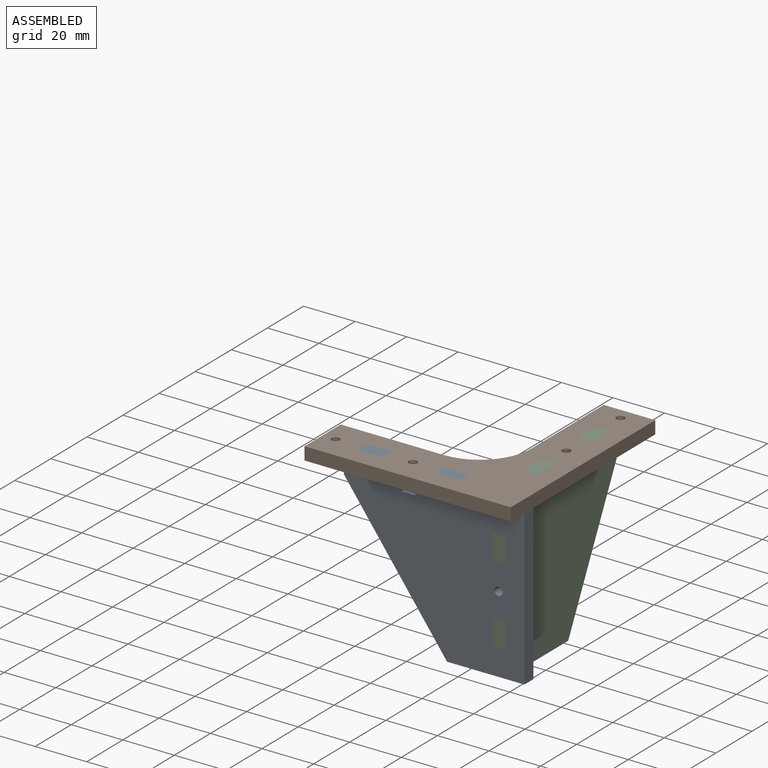
[diagram: assembled view]
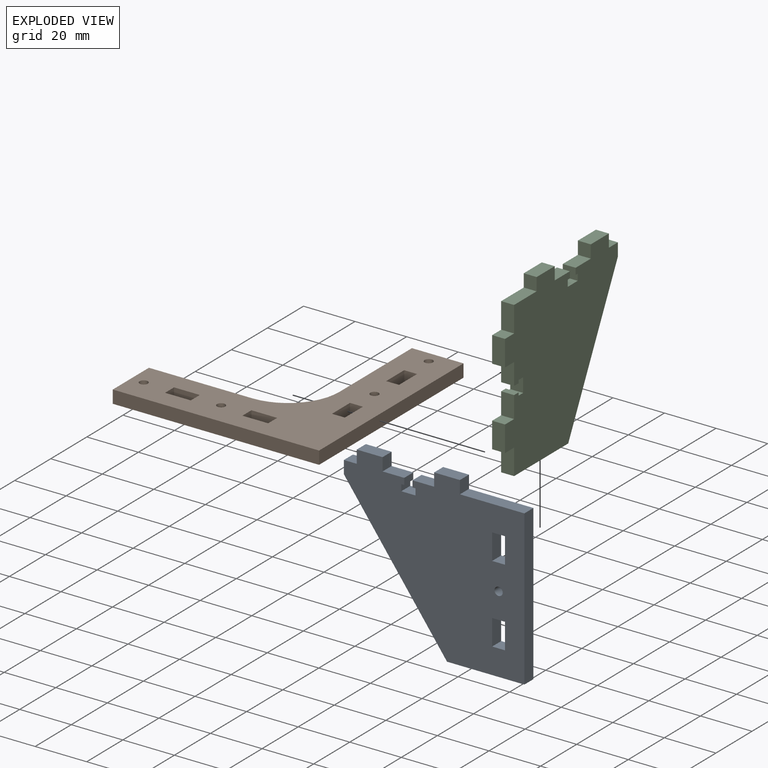
[diagram: exploded view]
GUIDED TOUR — MATED ASSEMBLY (Onshape document 587b4a1ab7e3a016f7670e06, AutoMate assembly 587b4a1ab7e3a016f7670e06_d3d78eabf9d92a54202f4ebb_569f92592c99146b34b32329_default)

This assembly has 3 components, labeled P0..P2 below (a component is one placed occurrence of a part; the same part can appear more than once), held together by 2 mates. A mate is a constraint between two components; its type names the relative motion it leaves free:
  FASTENED — locks the two components together rigidly (no relative motion).
Axis/direction vectors are unit vectors and 'through' points are millimeter coordinates, both in the assembly's world frame.

MATES
  1. FASTENED "Fastened 1": P2 <-> P0, direction (0.000, 0.000, 1.000) through (-46.94, -13.70, 50.59) mm
  2. FASTENED "Fastened 2": P0 <-> P1, direction (-1.000, 0.000, 0.000) through (-101.94, -13.70, 63.09) mm

ASSEMBLY ORDER
  1. P0 — the base component [order heuristic]
  2. P1 [order heuristic]
  3. P2 [order heuristic]
Order-tag legend:
  [order heuristic] — this assembly is geometrically interlocked (no collision-free removal order exists), so components are listed in mate-graph order; insertion feasibility is not verified.

Of the 3 components, 3 carry the full construction recipe — the FeatureScript program that regenerates the part's solid from scratch; the rest are supplied as boundary geometry only.
Each toured component is shown spotlighted twice — in the assembled view, then in the exploded view, where a leader line traces a displaced component back to its assembled socket (saturated green if recipe-attached, orange if geometry-only; every other component desaturated gray) — followed by its recipe or geometry summary and the mates that hold it.
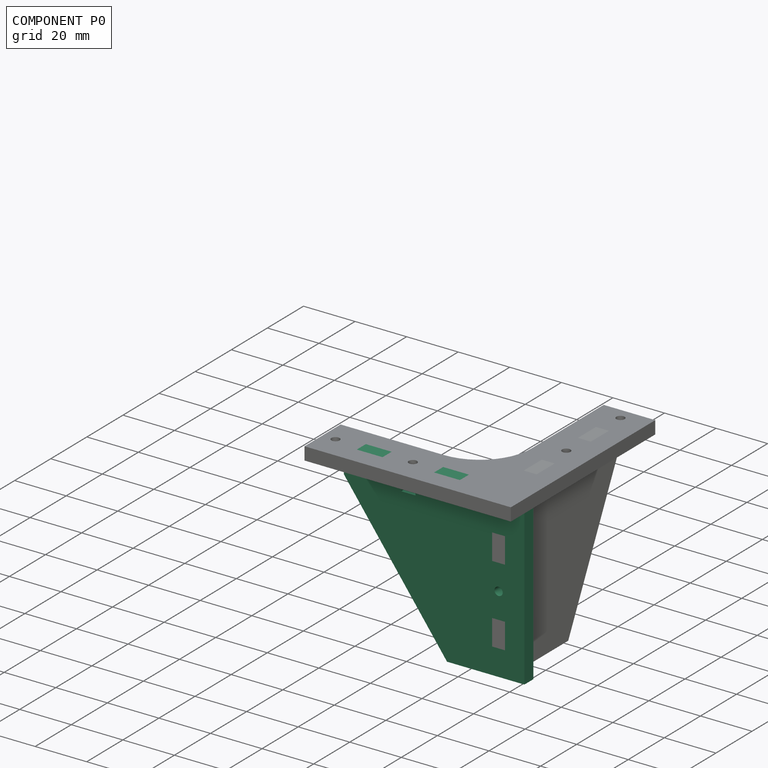
[diagram: component P0 — assembled]
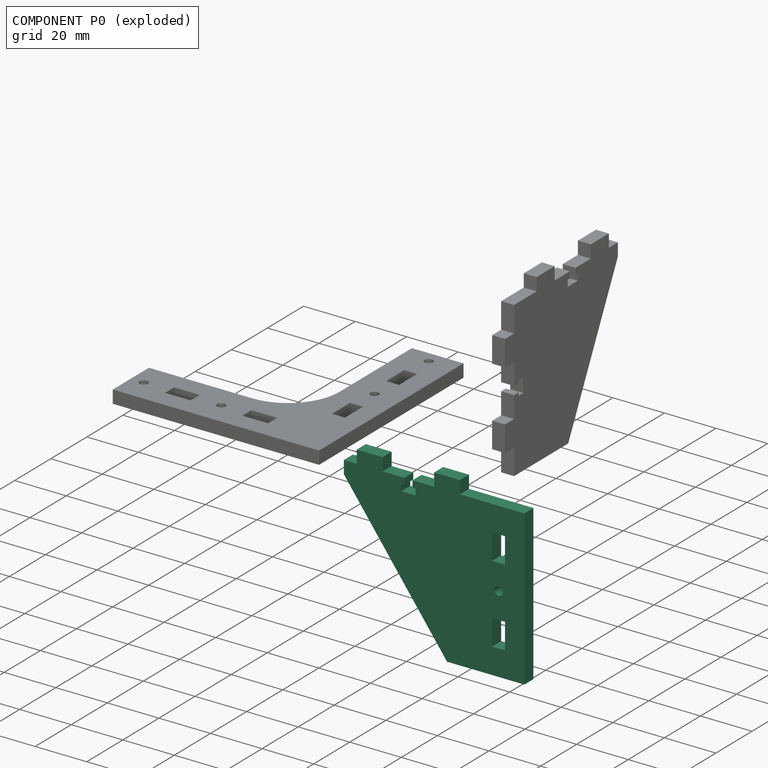
[diagram: component P0 — exploded]
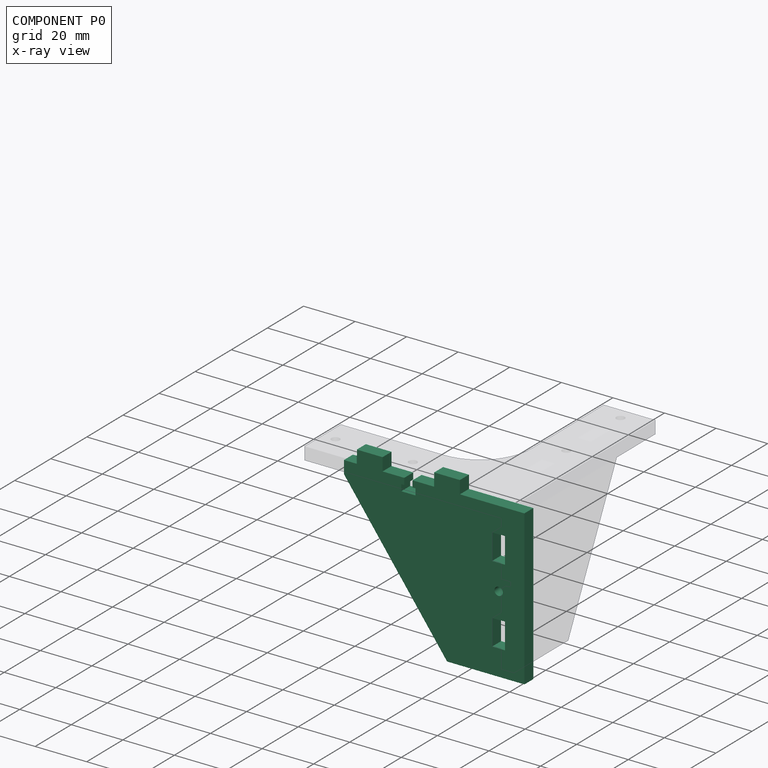
[diagram: component P0 — x-ray view]
COMPONENT P0 — recipe-attached (CADFS 00448783, mesh-verified: the recipe's output STEP matches this component's geometry to below the mesh-comparison resolution (tessellation chordal tolerance ~0.143 mm)).
Held by: FASTENED mate "Fastened 1" to P2; FASTENED mate "Fastened 2" to P1.
Construction recipe (FeatureScript — the CAD program that rebuilds this solid; sketch coordinates are in the units given by the * unit suffixes, e.g. mm):

FeatureScript 1511;
import(path : "onshape/std/geometry.fs", version : "1511.0");
import(path : "onshape/std/common.fs", version : "1511.0");
const mm = millimeter;
const VERTEX = EntityType.VERTEX;
const EDGE = EntityType.EDGE;
const FACE = EntityType.FACE;
const BODY = EntityType.BODY;
function v(x, y){return vector(x, y);}
function OD(order){return orderDisambiguation(order);}
function OSD(set){return originalSetDisambiguation(set);}
function TD(topology){return topologyDisambiguation(topology);}
function TDD(query){return trueDependencyDisambiguation(query);}
function sQuery(a, b, c) {return sketchEntityQuery(a, b, c);}

annotation { "Feature Type Name" : "Feature", "Feature Type Description" : "" }
export const myFeature = defineFeature(function(context is Context, id is Id, definition is map)
    precondition{}
    {
        {
            assignVariable(context, id + "F0", {"name" : "thickness", "anyValue" : 5 * mm});
        }
        {
            var Q0;
            Q0=qCreatedBy(makeId("Front.planeOp"),FACE);
            var sketch = newSketch(context, id + "F1", { "sketchPlane" : qUnion([Q0])});
            skLineSegment(sketch, "E0", {"start": v(0, 0) * mm, "end": v(-30, 0) * mm});
            skLineSegment(sketch, "E1", {"start": v(-70, 60) * mm, "end": v(-65, 60) * mm});
            skLineSegment(sketch, "E2", {"start": v(0, 60) * mm, "end": v(0, 0) * mm});
            skLineSegment(sketch, "E3.bottom", {"start": v(-12.5, 10) * mm, "end": v(-7.5, 10) * mm});
            skLineSegment(sketch, "E3.top", {"start": v(-12.5, 20) * mm, "end": v(-7.5, 20) * mm});
            skLineSegment(sketch, "E3.left", {"start": v(-12.5, 10) * mm, "end": v(-12.5, 20) * mm});
            skLineSegment(sketch, "E3.right", {"start": v(-7.5, 10) * mm, "end": v(-7.5, 20) * mm});
            skLineSegment(sketch, "E4.bottom", {"start": v(-12.5, 40) * mm, "end": v(-7.5, 40) * mm});
            skLineSegment(sketch, "E4.top", {"start": v(-12.5, 50) * mm, "end": v(-7.5, 50) * mm});
            skLineSegment(sketch, "E4.left", {"start": v(-12.5, 40) * mm, "end": v(-12.5, 50) * mm});
            skLineSegment(sketch, "E4.right", {"start": v(-7.5, 40) * mm, "end": v(-7.5, 50) * mm});
            skCircle(sketch, "E5", {"center": v(-10, 30) * mm, "radius": 1.6 * mm});
            skPoint(sketch, "E5.centerSnap0", {"position": v(-10, 40) * mm});
            skPoint(sketch, "E5.centerSnap1", {"position": v(0, 30) * mm});
            skLineSegment(sketch, "E6", {"start": v(-65, 60) * mm, "end": v(-65, 65) * mm});
            skLineSegment(sketch, "E7", {"start": v(-65, 65) * mm, "end": v(-55, 65) * mm});
            skLineSegment(sketch, "E8", {"start": v(-55, 65) * mm, "end": v(-55, 60) * mm});
            skLineSegment(sketch, "E9", {"start": v(-35, 60) * mm, "end": v(-35, 65) * mm});
            skLineSegment(sketch, "E10", {"start": v(-35, 65) * mm, "end": v(-25, 65) * mm});
            skLineSegment(sketch, "E11", {"start": v(-25, 65) * mm, "end": v(-25, 60) * mm});
            skLineSegment(sketch, "E12", {"start": v(-46.6, 60) * mm, "end": v(-46.6, 57.5) * mm});
            skLineSegment(sketch, "E13", {"start": v(-46.6, 57.5) * mm, "end": v(-47.75, 57.5) * mm});
            skLineSegment(sketch, "E14", {"start": v(-47.75, 57.5) * mm, "end": v(-47.75, 55) * mm});
            skLineSegment(sketch, "E15", {"start": v(-47.75, 55) * mm, "end": v(-45, 55) * mm});
            skLineSegment(sketch, "E16", {"start": v(-45, 55) * mm, "end": v(-45, 60) * mm, "construction": true});
            skLineSegment(sketch, "E17.MirrorCS", {"start": v(-43.4, 57.5) * mm, "end": v(-42.25, 57.5) * mm});
            skLineSegment(sketch, "E18.MirrorCS", {"start": v(-42.25, 57.5) * mm, "end": v(-42.25, 55) * mm});
            skLineSegment(sketch, "E19.MirrorCS", {"start": v(-43.4, 60) * mm, "end": v(-43.4, 57.5) * mm});
            skLineSegment(sketch, "E20.MirrorCS", {"start": v(-42.25, 55) * mm, "end": v(-45, 55) * mm});
            skLineSegment(sketch, "E21.trimOffspring", {"start": v(-43.4, 60) * mm, "end": v(-35, 60) * mm});
            skLineSegment(sketch, "E22", {"start": v(-70, 60) * mm, "end": v(-70, 55) * mm});
            skLineSegment(sketch, "E23", {"start": v(-70, 55) * mm, "end": v(-30, 0) * mm});
            skLineSegment(sketch, "E24.trimOffspring", {"start": v(-25, 60) * mm, "end": v(0, 60) * mm});
            skLineSegment(sketch, "E25.trimOffspring", {"start": v(-55, 60) * mm, "end": v(-46.6, 60) * mm});
            skSolve(sketch);
        }
        {
            var Q0;
            Q0=qSketchRegion(id+"F1",true);
            extrude(context, id + "F2", {"entities" : qUnion([Q0]), "depth" : getVariable(context, 'thickness')});
        }
    });
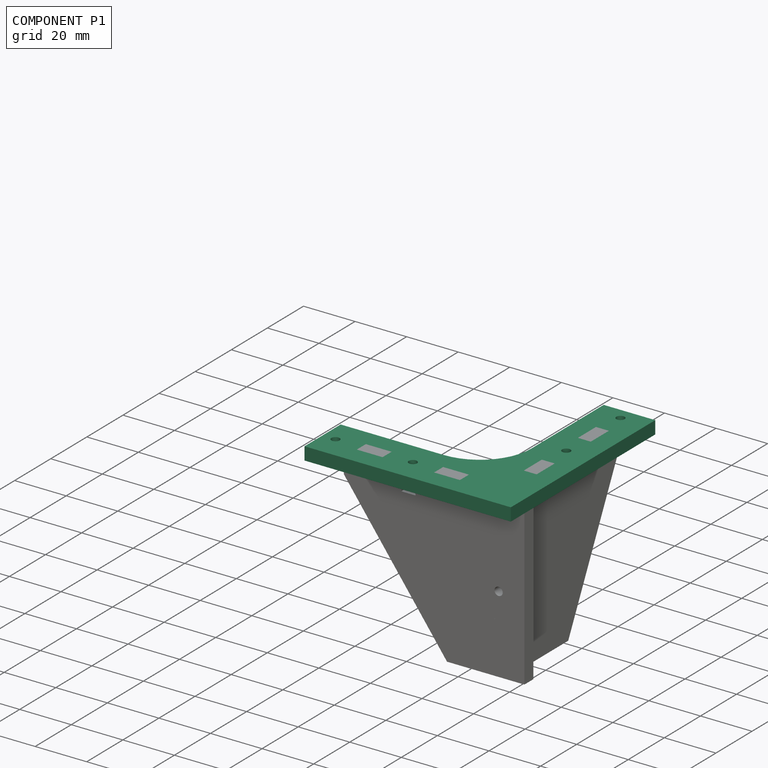
[diagram: component P1 — assembled]
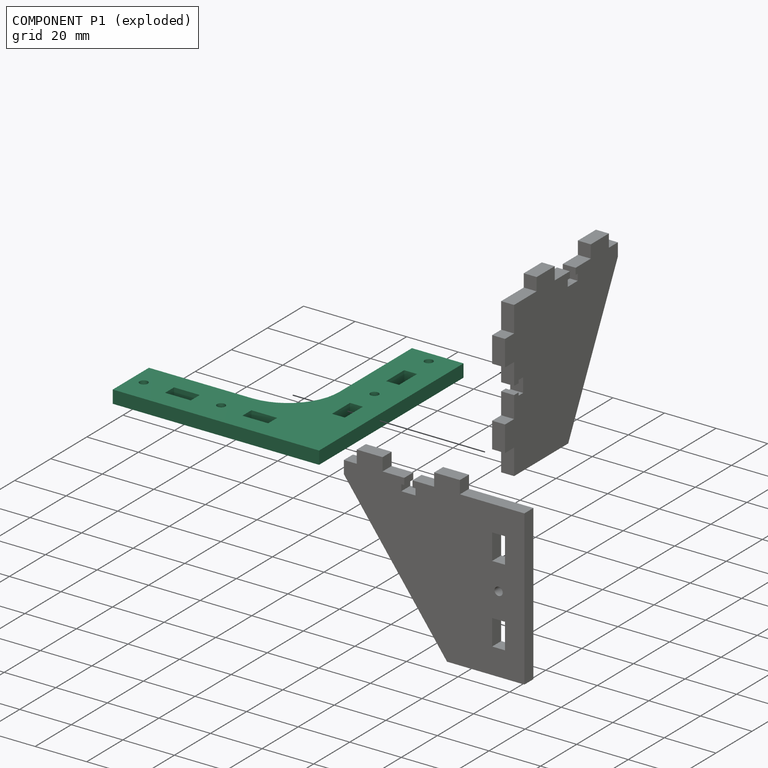
[diagram: component P1 — exploded]
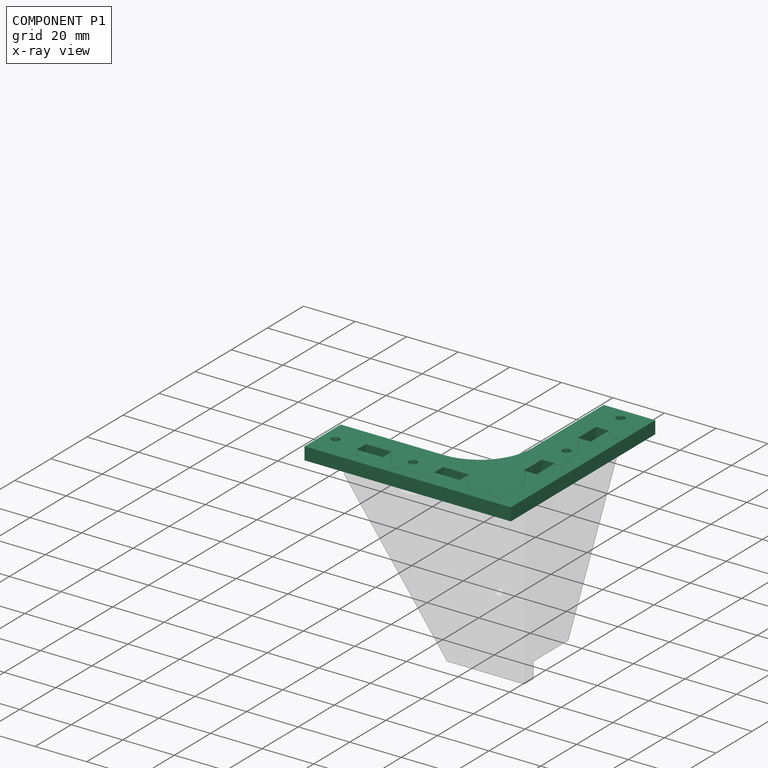
[diagram: component P1 — x-ray view]
COMPONENT P1 — recipe-attached (CADFS 00448752, mesh-verified: the recipe's output STEP matches this component's geometry to below the mesh-comparison resolution (tessellation chordal tolerance ~0.17 mm)).
Held by: FASTENED mate "Fastened 2" to P0.
Construction recipe (FeatureScript — the CAD program that rebuilds this solid; sketch coordinates are in the units given by the * unit suffixes, e.g. mm):

FeatureScript 1511;
import(path : "onshape/std/geometry.fs", version : "1511.0");
import(path : "onshape/std/common.fs", version : "1511.0");
const mm = millimeter;
const VERTEX = EntityType.VERTEX;
const EDGE = EntityType.EDGE;
const FACE = EntityType.FACE;
const BODY = EntityType.BODY;
function v(x, y){return vector(x, y);}
function OD(order){return orderDisambiguation(order);}
function OSD(set){return originalSetDisambiguation(set);}
function TD(topology){return topologyDisambiguation(topology);}
function TDD(query){return trueDependencyDisambiguation(query);}
function sQuery(a, b, c) {return sketchEntityQuery(a, b, c);}

annotation { "Feature Type Name" : "Feature", "Feature Type Description" : "" }
export const myFeature = defineFeature(function(context is Context, id is Id, definition is map)
    precondition{}
    {
        {
            assignVariable(context, id + "F0", {"name" : "thickness", "anyValue" : 5 * mm});
        }
        {
            var Q0;
            Q0=qCreatedBy(makeId("Top.planeOp"),FACE);
            var sketch = newSketch(context, id + "F1", { "sketchPlane" : qUnion([Q0])});
            skLineSegment(sketch, "E0", {"start": v(0, 0) * mm, "end": v(-80, 0) * mm});
            skLineSegment(sketch, "E1", {"start": v(-70, 0) * mm, "end": v(-70, 20) * mm, "construction": true});
            skLineSegment(sketch, "E2", {"start": v(-80, 20) * mm, "end": v(-40, 20) * mm});
            skLineSegment(sketch, "E3", {"start": v(-20, 40) * mm, "end": v(-20, 80) * mm});
            skLineSegment(sketch, "E4", {"start": v(-20, 70) * mm, "end": v(0, 70) * mm, "construction": true});
            skLineSegment(sketch, "E5", {"start": v(0, 80) * mm, "end": v(0, 0) * mm});
            skLineSegment(sketch, "E6", {"start": v(-70, 10) * mm, "end": v(-10, 10) * mm, "construction": true});
            skLineSegment(sketch, "E7", {"start": v(-10, 70) * mm, "end": v(-10, 10) * mm, "construction": true});
            skLineSegment(sketch, "E8.bottom", {"start": v(-55, 12.5) * mm, "end": v(-65, 12.5) * mm});
            skLineSegment(sketch, "E8.top", {"start": v(-55, 7.5) * mm, "end": v(-65, 7.5) * mm});
            skLineSegment(sketch, "E8.left", {"start": v(-55, 12.5) * mm, "end": v(-55, 7.5) * mm});
            skLineSegment(sketch, "E8.right", {"start": v(-65, 12.5) * mm, "end": v(-65, 7.5) * mm});
            skPoint(sketch, "E8.middle", {"position": v(-60, 10) * mm});
            skLineSegment(sketch, "E9.bottom", {"start": v(-25, 12.5) * mm, "end": v(-35, 12.5) * mm});
            skLineSegment(sketch, "E9.top", {"start": v(-25, 7.5) * mm, "end": v(-35, 7.5) * mm});
            skLineSegment(sketch, "E9.left", {"start": v(-25, 12.5) * mm, "end": v(-25, 7.5) * mm});
            skLineSegment(sketch, "E9.right", {"start": v(-35, 12.5) * mm, "end": v(-35, 7.5) * mm});
            skPoint(sketch, "E9.middle", {"position": v(-30, 10) * mm});
            skLineSegment(sketch, "E10.bottom", {"start": v(-7.5, 35) * mm, "end": v(-12.5, 35) * mm});
            skLineSegment(sketch, "E10.top", {"start": v(-7.5, 25) * mm, "end": v(-12.5, 25) * mm});
            skLineSegment(sketch, "E10.left", {"start": v(-7.5, 35) * mm, "end": v(-7.5, 25) * mm});
            skLineSegment(sketch, "E10.right", {"start": v(-12.5, 35) * mm, "end": v(-12.5, 25) * mm});
            skPoint(sketch, "E10.middle", {"position": v(-10, 30) * mm});
            skLineSegment(sketch, "E11.bottom", {"start": v(-7.5, 65) * mm, "end": v(-12.5, 65) * mm});
            skLineSegment(sketch, "E11.top", {"start": v(-7.5, 55) * mm, "end": v(-12.5, 55) * mm});
            skLineSegment(sketch, "E11.left", {"start": v(-7.5, 65) * mm, "end": v(-7.5, 55) * mm});
            skLineSegment(sketch, "E11.right", {"start": v(-12.5, 65) * mm, "end": v(-12.5, 55) * mm});
            skPoint(sketch, "E11.middle", {"position": v(-10, 60) * mm});
            skCircle(sketch, "E12", {"center": v(-45, 10) * mm, "radius": 1.6 * mm});
            skCircle(sketch, "E13", {"center": v(-10, 45) * mm, "radius": 1.6 * mm});
            skPoint(sketch, "E14.visualSharp", {"position": v(-20, 20) * mm});
            skArc(sketch, "E14.filletArc", {"start": v(-40, 20) * mm, "mid": v(-25.86, 25.86) * mm, "end": v(-20, 40) * mm});
            skPoint(sketch, "E15.visualSharp", {"position": v(-70, 20) * mm});
            skPoint(sketch, "E16.visualSharp", {"position": v(-70, 0) * mm});
            skPoint(sketch, "E17.visualSharp", {"position": v(-20, 70) * mm});
            skPoint(sketch, "E18.visualSharp", {"position": v(0, 70) * mm});
            skLineSegment(sketch, "E19", {"start": v(-80, 20) * mm, "end": v(-80, 0) * mm});
            skCircle(sketch, "E20", {"center": v(-75, 10) * mm, "radius": 1.6 * mm});
            skPoint(sketch, "E20.centerSnap0", {"position": v(-80, 10) * mm});
            skLineSegment(sketch, "E21", {"start": v(0, 80) * mm, "end": v(-20, 80) * mm});
            skCircle(sketch, "E22", {"center": v(-10, 75) * mm, "radius": 1.6 * mm});
            skPoint(sketch, "E22.centerSnap0", {"position": v(-10, 80) * mm});
            skSolve(sketch);
        }
        {
            var Q0;
            Q0=qSketchRegion(id+"F1",true);
            extrude(context, id + "F2", {"entities" : qUnion([Q0]), "depth" : getVariable(context, 'thickness')});
        }
    });
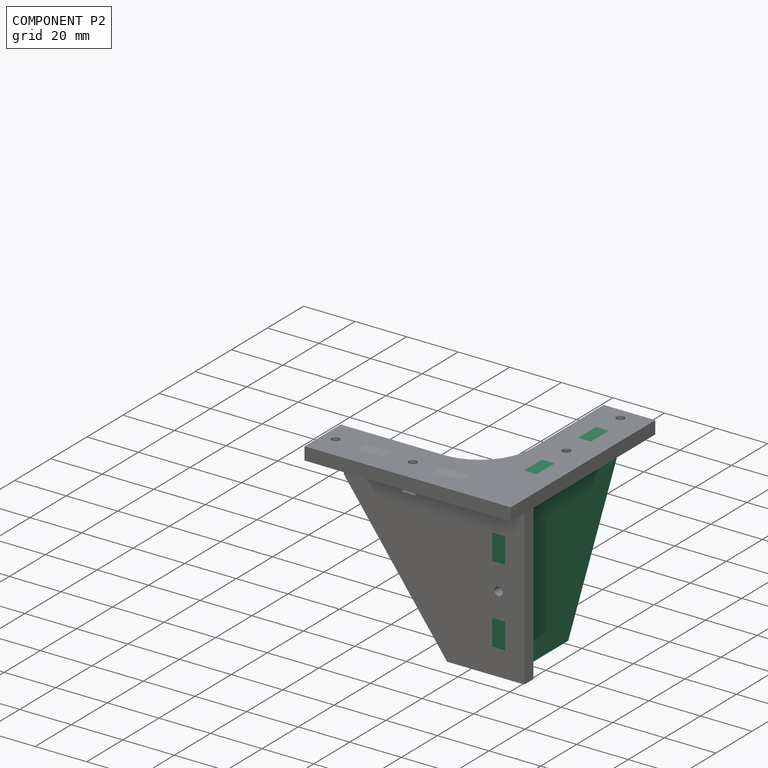
[diagram: component P2 — assembled]
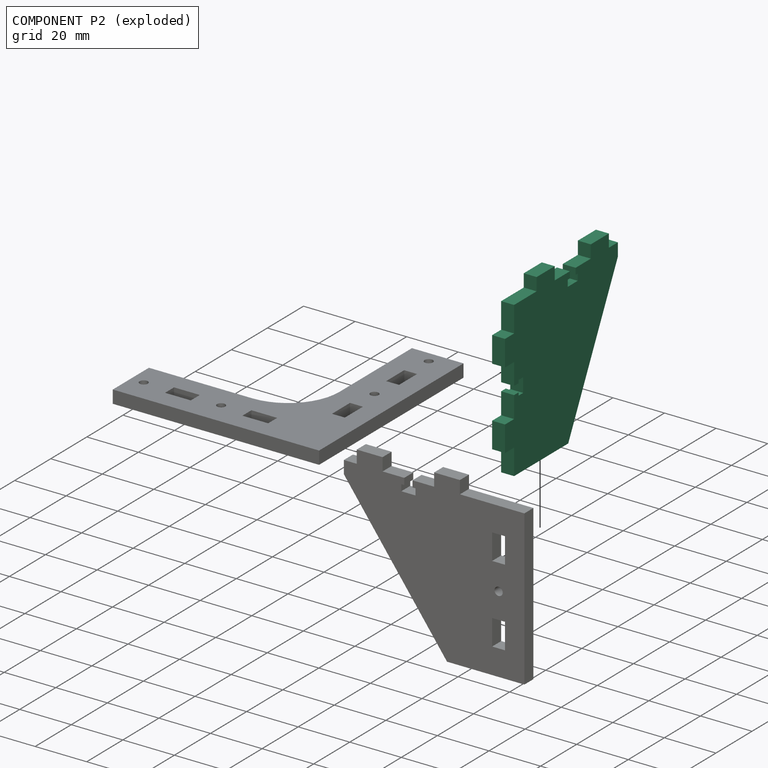
[diagram: component P2 — exploded]
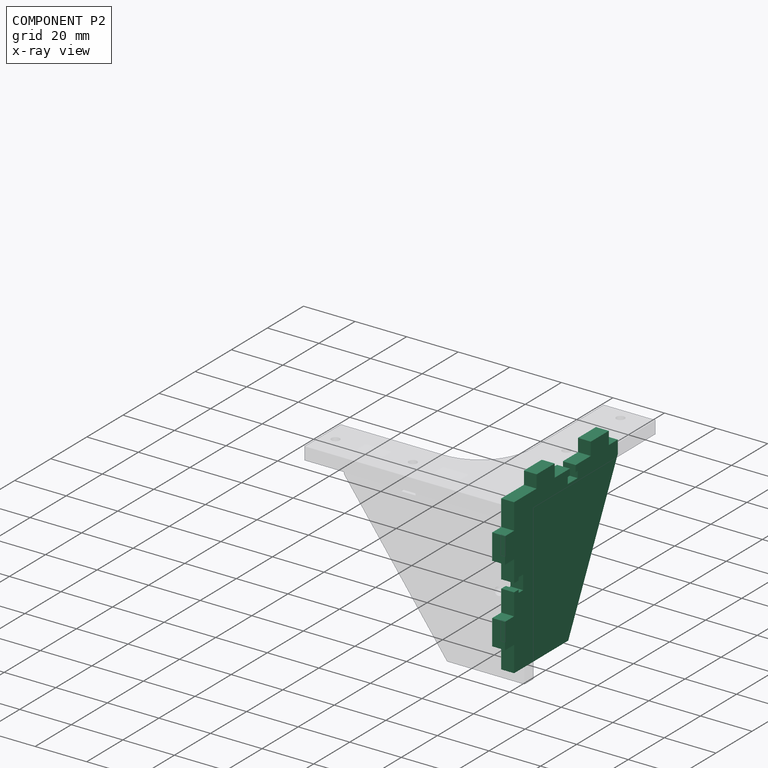
[diagram: component P2 — x-ray view]
COMPONENT P2 — recipe-attached (CADFS 00448784, mesh-verified: the recipe's output STEP matches this component's geometry to below the mesh-comparison resolution (tessellation chordal tolerance ~0.135 mm)).
Held by: FASTENED mate "Fastened 1" to P0.
Construction recipe (FeatureScript — the CAD program that rebuilds this solid; sketch coordinates are in the units given by the * unit suffixes, e.g. mm):

FeatureScript 1511;
import(path : "onshape/std/geometry.fs", version : "1511.0");
import(path : "onshape/std/common.fs", version : "1511.0");
const mm = millimeter;
const VERTEX = EntityType.VERTEX;
const EDGE = EntityType.EDGE;
const FACE = EntityType.FACE;
const BODY = EntityType.BODY;
function v(x, y){return vector(x, y);}
function OD(order){return orderDisambiguation(order);}
function OSD(set){return originalSetDisambiguation(set);}
function TD(topology){return topologyDisambiguation(topology);}
function TDD(query){return trueDependencyDisambiguation(query);}
function sQuery(a, b, c) {return sketchEntityQuery(a, b, c);}

annotation { "Feature Type Name" : "Feature", "Feature Type Description" : "" }
export const myFeature = defineFeature(function(context is Context, id is Id, definition is map)
    precondition{}
    {
        {
            assignVariable(context, id + "F0", {"name" : "thickness", "anyValue" : 5 * mm});
        }
        {
            var Q0;
            Q0=qCreatedBy(makeId("Front.planeOp"),FACE);
            var sketch = newSketch(context, id + "F1", { "sketchPlane" : qUnion([Q0])});
            skLineSegment(sketch, "E0", {"start": v(0, 0) * mm, "end": v(-30, 0) * mm});
            skLineSegment(sketch, "E1", {"start": v(-57.5, 60) * mm, "end": v(-52.5, 60) * mm});
            skLineSegment(sketch, "E2", {"start": v(0, 60) * mm, "end": v(0, 50) * mm});
            skPoint(sketch, "E3.centerSnap1", {"position": v(0, 30) * mm});
            skLineSegment(sketch, "E4", {"start": v(-52.5, 60) * mm, "end": v(-52.5, 65) * mm});
            skLineSegment(sketch, "E5", {"start": v(-52.5, 65) * mm, "end": v(-42.5, 65) * mm});
            skLineSegment(sketch, "E6", {"start": v(-42.5, 65) * mm, "end": v(-42.5, 60) * mm});
            skLineSegment(sketch, "E7", {"start": v(-22.5, 60) * mm, "end": v(-22.5, 65) * mm});
            skLineSegment(sketch, "E8", {"start": v(-22.5, 65) * mm, "end": v(-12.5, 65) * mm});
            skLineSegment(sketch, "E9", {"start": v(-12.5, 65) * mm, "end": v(-12.5, 60) * mm});
            skLineSegment(sketch, "E10", {"start": v(-34.1, 60) * mm, "end": v(-34.1, 57.5) * mm});
            skLineSegment(sketch, "E11", {"start": v(-34.1, 57.5) * mm, "end": v(-35.25, 57.5) * mm});
            skLineSegment(sketch, "E12", {"start": v(-35.25, 57.5) * mm, "end": v(-35.25, 55) * mm});
            skLineSegment(sketch, "E13", {"start": v(-35.25, 55) * mm, "end": v(-32.5, 55) * mm});
            skLineSegment(sketch, "E14", {"start": v(-32.5, 55) * mm, "end": v(-32.5, 60) * mm, "construction": true});
            skLineSegment(sketch, "E15.MirrorCS", {"start": v(-30.9, 57.5) * mm, "end": v(-29.75, 57.5) * mm});
            skLineSegment(sketch, "E16.MirrorCS", {"start": v(-29.75, 57.5) * mm, "end": v(-29.75, 55) * mm});
            skLineSegment(sketch, "E17.MirrorCS", {"start": v(-30.9, 60) * mm, "end": v(-30.9, 57.5) * mm});
            skLineSegment(sketch, "E18.MirrorCS", {"start": v(-29.75, 55) * mm, "end": v(-32.5, 55) * mm});
            skLineSegment(sketch, "E19.trimOffspring", {"start": v(-30.9, 60) * mm, "end": v(-22.5, 60) * mm});
            skLineSegment(sketch, "E20.trimOffspring", {"start": v(-42.5, 60) * mm, "end": v(-34.1, 60) * mm});
            skLineSegment(sketch, "E21.trimOffspring", {"start": v(-12.5, 60) * mm, "end": v(0, 60) * mm});
            skLineSegment(sketch, "E22", {"start": v(0, 50) * mm, "end": v(5, 50) * mm});
            skLineSegment(sketch, "E23", {"start": v(5, 50) * mm, "end": v(5, 40) * mm});
            skLineSegment(sketch, "E24", {"start": v(5, 40) * mm, "end": v(0, 40) * mm});
            skLineSegment(sketch, "E25", {"start": v(0, 20) * mm, "end": v(5, 20) * mm});
            skLineSegment(sketch, "E26", {"start": v(5, 20) * mm, "end": v(5, 10) * mm});
            skLineSegment(sketch, "E27", {"start": v(5, 10) * mm, "end": v(0, 10) * mm});
            skLineSegment(sketch, "E28", {"start": v(0, 31.6) * mm, "end": v(-2.5, 31.6) * mm});
            skLineSegment(sketch, "E29", {"start": v(-2.5, 31.6) * mm, "end": v(-2.5, 32.75) * mm});
            skLineSegment(sketch, "E30", {"start": v(-2.5, 32.75) * mm, "end": v(-5, 32.75) * mm});
            skLineSegment(sketch, "E31", {"start": v(-5, 32.75) * mm, "end": v(-5, 30) * mm});
            skLineSegment(sketch, "E32", {"start": v(-5, 30) * mm, "end": v(0, 30) * mm, "construction": true});
            skLineSegment(sketch, "E33.MirrorCS", {"start": v(-2.5, 28.4) * mm, "end": v(-2.5, 27.25) * mm});
            skLineSegment(sketch, "E34.MirrorCS", {"start": v(-2.5, 27.25) * mm, "end": v(-5, 27.25) * mm});
            skLineSegment(sketch, "E35.MirrorCS", {"start": v(0, 28.4) * mm, "end": v(-2.5, 28.4) * mm});
            skLineSegment(sketch, "E36.MirrorCS", {"start": v(-5, 27.25) * mm, "end": v(-5, 30) * mm});
            skLineSegment(sketch, "E37", {"start": v(0, 40) * mm, "end": v(0, 31.6) * mm, "construction": true});
            skLineSegment(sketch, "E38.trimOffspring", {"start": v(0, 40) * mm, "end": v(0, 31.6) * mm});
            skLineSegment(sketch, "E39.trimOffspring", {"start": v(0, 28.4) * mm, "end": v(0, 20) * mm, "construction": true});
            skLineSegment(sketch, "E40.trimOffspring", {"start": v(0, 28.4) * mm, "end": v(0, 20) * mm});
            skLineSegment(sketch, "E41.trimOffspring", {"start": v(0, 10) * mm, "end": v(0, 0) * mm});
            skLineSegment(sketch, "E42", {"start": v(-57.5, 60) * mm, "end": v(-57.5, 55) * mm});
            skLineSegment(sketch, "E43", {"start": v(-57.5, 55) * mm, "end": v(-30, 0) * mm});
            skSolve(sketch);
        }
        {
            var Q0;
            Q0=qSketchRegion(id+"F1",true);
            extrude(context, id + "F2", {"entities" : qUnion([Q0]), "depth" : getVariable(context, 'thickness')});
        }
    });
PROVENANCE & LICENSES
Assembly (occurrences, transforms, mates, per-part STEP geometry): AutoMate dataset, Zenodo record 7776208, CC0.
Construction recipes: CADFS (HuggingFace VladPyatov/CADFS, CC-BY-4.0, layered over the ABC dataset), FeatureScript reconstruction programs keyed by ABC model id.
Join: ABC meta listings map ABC model id -> Onshape documentId; within a shared document, parts are matched by geometric signature (bounding-box dims + volume at 0.1% relative tolerance, exact B-rep face/solid counts).
Verification: 3 of this assembly's 3 components carry a recipe attachment, and every attachment is mesh-verified: the CADFS STEP and the AutoMate member STEP were compared as meshes in their shared local frame (symmetric sampled-point-to-mesh distance); worst across the 3 attachments: below the mesh-comparison resolution (tessellation chordal tolerance ~0.17 mm) on a 113 mm part.
Renders: orthographic iso camera (az 35 / el 25); the floor grid conveys scale (grid pitch printed in each image; no ruler). In the exploded view each component is displaced by its stored offset vector: the offsets alone carry the explosion direction (mate normal/axis signs are not orientation cues and do not encode it), and separation distances are assigned per mate-chain, not proportionally to assembly-order depth.
